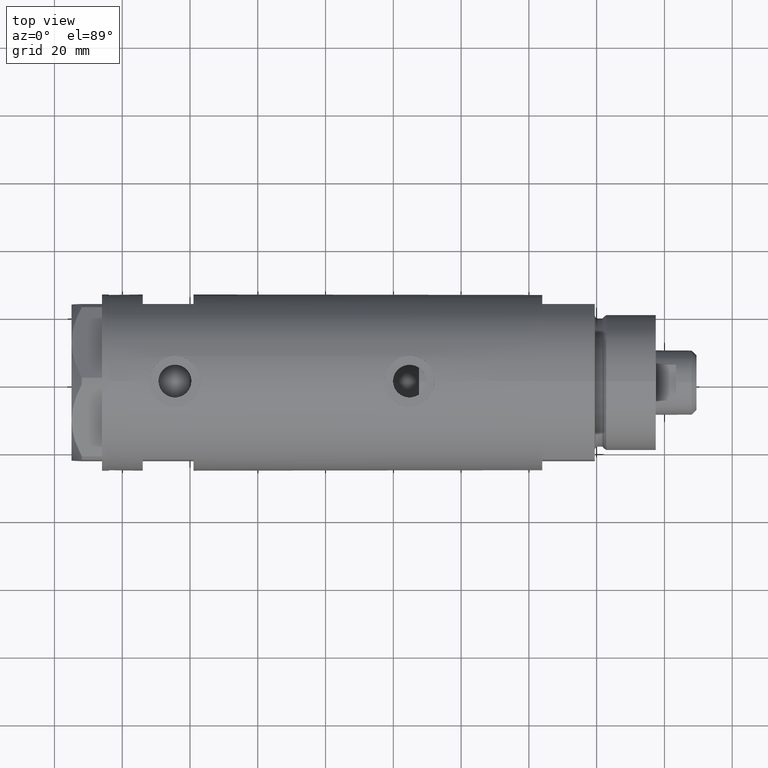
[diagram: clean part render]
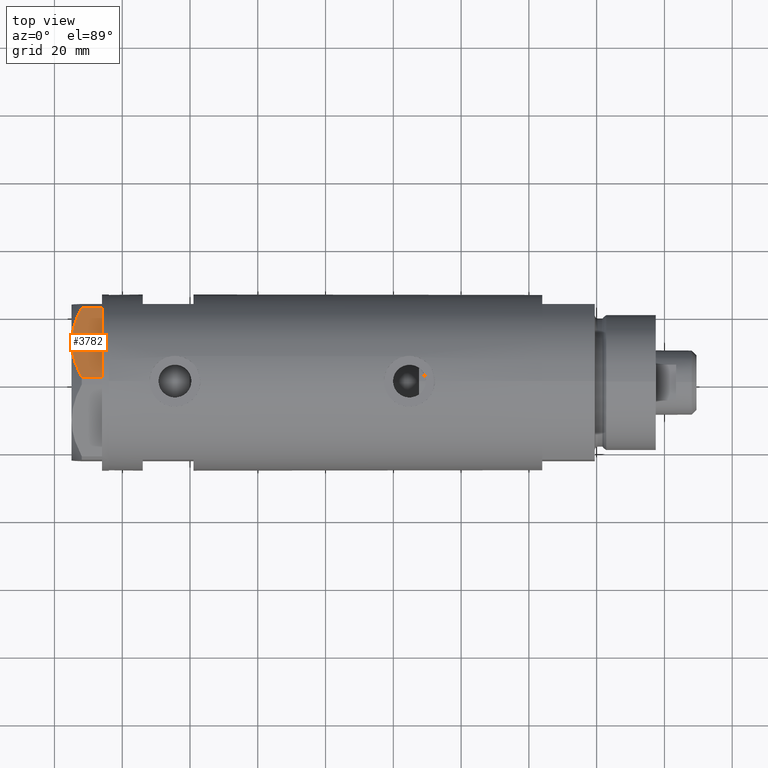
[diagram: same view with one face highlighted and labeled with its STEP entity id]
A machine part, top view. The second image highlights one B-rep face of the part: STEP entity #3782.
In plain terms, the highlighted planar face has unit normal (-0, -0.5, -0.866).
Its self-contained STEP definition (entity closure, byte-faithful):
#27 = ORIENTED_EDGE ( 'NONE', *, *, #3781, .T. ) ;
#170 = CARTESIAN_POINT ( 'NONE',  ( 4.320186229910052411, -24.06385169993491857, 7.629374868826107381 ) ) ;
#303 = CARTESIAN_POINT ( 'NONE',  ( 0.9699484522387654684, -25.99811238272272718, 0.000000000000000000 ) ) ;
#304 = CARTESIAN_POINT ( 'NONE',  ( 17.77001848220201907, -16.29858742851870090, 7.892128867758446908 ) ) ;
#709 = ORIENTED_EDGE ( 'NONE', *, *, #3212, .T. ) ;
#710 = CARTESIAN_POINT ( 'NONE',  ( 10.58093321976977386, -20.44920774001120733, 8.981686407609503320 ) ) ;
#837 = CARTESIAN_POINT ( 'NONE',  ( 22.03005154776152352, -13.83905619136116449, 5.983800287807632401 ) ) ;
#843 = EDGE_CURVE ( 'NONE', #1607, #5547, #1969, .T. ) ;
#860 = VERTEX_POINT ( 'NONE', #4532 ) ;
#1051 = VECTOR ( 'NONE', #5210, 1000.000000000000000 ) ;
#1085 = CARTESIAN_POINT ( 'NONE',  ( 2.626494320835812690, -25.04170517956324460, 6.877782426143459915 ) ) ;
#1160 = EDGE_CURVE ( 'NONE', #5753, #6194, #3257, .T. ) ;
#1242 = LINE ( 'NONE', #6146, #1318 ) ;
#1267 = CARTESIAN_POINT ( 'NONE',  ( 1.000000000000106803, -25.98076211353316367, 0.000000000000000000 ) ) ;
#1318 = VECTOR ( 'NONE', #6076, 1000.000000000000000 ) ;
#1607 = VERTEX_POINT ( 'NONE', #2218 ) ;
#1637 = CARTESIAN_POINT ( 'NONE',  ( 9.197898616903062319, -21.24770314027487572, 8.852712638955805957 ) ) ;
#1791 = CARTESIAN_POINT ( 'NONE',  ( 19.07486218897004093, -15.54523556316577704, 7.397272853991418096 ) ) ;
#1826 = CARTESIAN_POINT ( 'NONE',  ( 21.20080365460326988, -14.31782268570101735, 6.431317509509397290 ) ) ;
#1832 = CARTESIAN_POINT ( 'NONE',  ( 0.9699484522386233598, -25.99811238272281244, 5.983800287807552465 ) ) ;
#1894 = EDGE_CURVE ( 'NONE', #3510, #860, #4266, .T. ) ;
#1969 = LINE ( 'NONE', #3538, #6136 ) ;
#2204 = CARTESIAN_POINT ( 'NONE',  ( 1.854543075583504180E-13, -26.55811238272274366, 9.000000000000000000 ) ) ;
#2218 = CARTESIAN_POINT ( 'NONE',  ( 22.00000000000017053, -13.85640646055075464, 0.000000000000000000 ) ) ;
#2247 = VERTEX_POINT ( 'NONE', #1267 ) ;
#2635 = CARTESIAN_POINT ( 'NONE',  ( 11.50000000000018296, -19.91858428704203732, 9.000000000000000000 ) ) ;
#2663 = ORIENTED_EDGE ( 'NONE', *, *, #5503, .T. ) ;
#2708 = CARTESIAN_POINT ( 'NONE',  ( 6.946777556903783513, -22.54738849024392877, 8.426899937603783641 ) ) ;
#2723 = PLANE ( 'NONE',  #5914 ) ;
#2773 = VECTOR ( 'NONE', #4333, 999.9999999999998863 ) ;
#2788 = CARTESIAN_POINT ( 'NONE',  ( 0.9699484522387652463, -25.99811238272272718, 9.000000000000000000 ) ) ;
#2894 = CARTESIAN_POINT ( 'NONE',  ( 1.854543075583504180E-13, -26.55811238272274366, 0.000000000000000000 ) ) ;
#2936 = ORIENTED_EDGE ( 'NONE', *, *, #1160, .T. ) ;
#3042 = CARTESIAN_POINT ( 'NONE',  ( 11.50000000000018296, -19.91858428704203732, 9.000000000000000000 ) ) ;
#3100 = CARTESIAN_POINT ( 'NONE',  ( 0.9699484522386233598, -25.99811238272281244, 5.983800287807552465 ) ) ;
#3188 = DIRECTION ( 'NONE',  ( -0.8660254037844344888, -0.5000000000000069944, 0.000000000000000000 ) ) ;
#3212 = EDGE_CURVE ( 'NONE', #2247, #1607, #4210, .T. ) ;
#3228 = ORIENTED_EDGE ( 'NONE', *, *, #1894, .F. ) ;
#3257 = LINE ( 'NONE', #2788, #1051 ) ;
#3356 = CARTESIAN_POINT ( 'NONE',  ( 17.32831362639727146, -16.55360584591992890, 8.040681765829337024 ) ) ;
#3367 = LINE ( 'NONE', #2894, #2773 ) ;
#3383 = EDGE_CURVE ( 'NONE', #5753, #3510, #5713, .T. ) ;
#3428 = ORIENTED_EDGE ( 'NONE', *, *, #843, .T. ) ;
#3510 = VERTEX_POINT ( 'NONE', #2635 ) ;
#3538 = CARTESIAN_POINT ( 'NONE',  ( 1.854543075583504180E-13, -26.55811238272274366, 0.000000000000000000 ) ) ;
#3586 = CARTESIAN_POINT ( 'NONE',  ( 9.656518383329995459, -20.98291889467261129, 8.907842277728439839 ) ) ;
#3687 = CARTESIAN_POINT ( 'NONE',  ( 11.04134848610953235, -20.18338686205092714, 9.000000000000095923 ) ) ;
#3713 = CARTESIAN_POINT ( 'NONE',  ( 13.32175508098997518, -18.86679350063488059, 9.000000000000094147 ) ) ;
#3781 = EDGE_CURVE ( 'NONE', #5547, #860, #1242, .T. ) ;
#3782 = ADVANCED_FACE ( 'NONE', ( #5206 ), #2723, .F. ) ;
#3913 = CARTESIAN_POINT ( 'NONE',  ( 22.03005154776152708, -13.83905619136116449, 0.000000000000000000 ) ) ;
#3917 = VECTOR ( 'NONE', #6190, 999.9999999999998863 ) ;
#4138 = CARTESIAN_POINT ( 'NONE',  ( 7.836767740116735048, -22.03355241838978884, 8.637313967156950767 ) ) ;
#4200 = CARTESIAN_POINT ( 'NONE',  ( 18.64279229058404752, -15.79469123530767227, 7.570552255229726413 ) ) ;
#4210 = LINE ( 'NONE', #4272, #3917 ) ;
#4266 = B_SPLINE_CURVE_WITH_KNOTS ( 'NONE', 3,
 ( #4707, #3713, #5711, #3356, #304, #4200, #1791, #6156, #1826, #837 ),
 .UNSPECIFIED., .F., .F.,
 ( 4, 2, 2, 2, 4 ),
 ( 0.01376519981810312224, 0.01998941321701588197, 0.02154546656674407104, 0.02310151991647226011, 0.02621362661592864518 ),
 .UNSPECIFIED. ) ;
#4272 = CARTESIAN_POINT ( 'NONE',  ( 1.854543075583504180E-13, -26.55811238272274366, 0.000000000000000000 ) ) ;
#4333 = DIRECTION ( 'NONE',  ( 0.8660254037844345998, 0.5000000000000069944, 0.000000000000000000 ) ) ;
#4504 = DIRECTION ( 'NONE',  ( 0.8660254037844345998, 0.5000000000000069944, 0.000000000000000000 ) ) ;
#4532 = CARTESIAN_POINT ( 'NONE',  ( 22.03005154776152352, -13.83905619136116449, 5.983800287807632401 ) ) ;
#4707 = CARTESIAN_POINT ( 'NONE',  ( 11.50000000000018296, -19.91858428704203732, 9.000000000000000000 ) ) ;
#5206 = FACE_OUTER_BOUND ( 'NONE', #5270, .T. ) ;
#5210 = DIRECTION ( 'NONE',  ( 0.000000000000000000, 0.000000000000000000, -1.000000000000000000 ) ) ;
#5270 = EDGE_LOOP ( 'NONE', ( #5846, #2936, #2663, #709, #3428, #27, #3228 ) ) ;
#5503 = EDGE_CURVE ( 'NONE', #6194, #2247, #3367, .T. ) ;
#5547 = VERTEX_POINT ( 'NONE', #3913 ) ;
#5695 = DIRECTION ( 'NONE',  ( -0.5000000000000071054, 0.8660254037844345998, 0.000000000000000000 ) ) ;
#5711 = CARTESIAN_POINT ( 'NONE',  ( 15.11535457301044261, -17.83125835109846591, 8.707651728477005193 ) ) ;
#5713 = B_SPLINE_CURVE_WITH_KNOTS ( 'NONE', 3,
 ( #3100, #1085, #170, #2708, #4138, #1637, #3586, #710, #3687, #3042 ),
 .UNSPECIFIED., .F., .F.,
 ( 4, 2, 2, 2, 4 ),
 ( 0.001228959670438524313, 0.007497079744270824901, 0.01063113978118697747, 0.01219816979964504985, 0.01376519981810312224 ),
 .UNSPECIFIED. ) ;
#5753 = VERTEX_POINT ( 'NONE', #1832 ) ;
#5846 = ORIENTED_EDGE ( 'NONE', *, *, #3383, .F. ) ;
#5914 = AXIS2_PLACEMENT_3D ( 'NONE', #2204, #5695, #3188 ) ;
#6076 = DIRECTION ( 'NONE',  ( 0.000000000000000000, 0.000000000000000000, 1.000000000000000000 ) ) ;
#6136 = VECTOR ( 'NONE', #4504, 999.9999999999998863 ) ;
#6146 = CARTESIAN_POINT ( 'NONE',  ( 22.03005154776152352, -13.83905619136116449, 9.000000000000000000 ) ) ;
#6156 = CARTESIAN_POINT ( 'NONE',  ( 20.35958612119336308, -14.80349985506228094, 6.844201024438393510 ) ) ;
#6190 = DIRECTION ( 'NONE',  ( 0.8660254037844345998, 0.5000000000000069944, 0.000000000000000000 ) ) ;
#6194 = VERTEX_POINT ( 'NONE', #303 ) ;